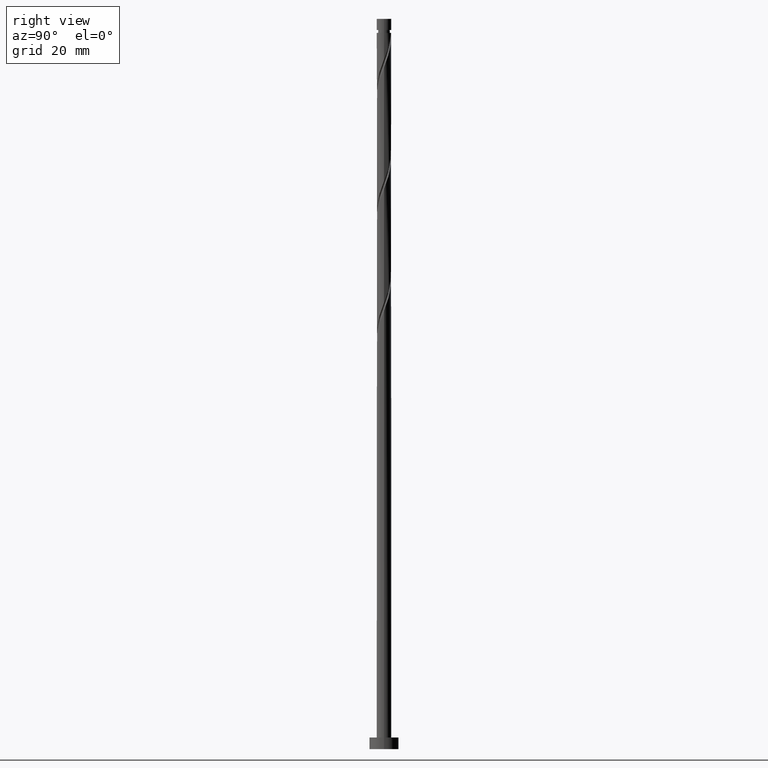
[diagram: clean part render]
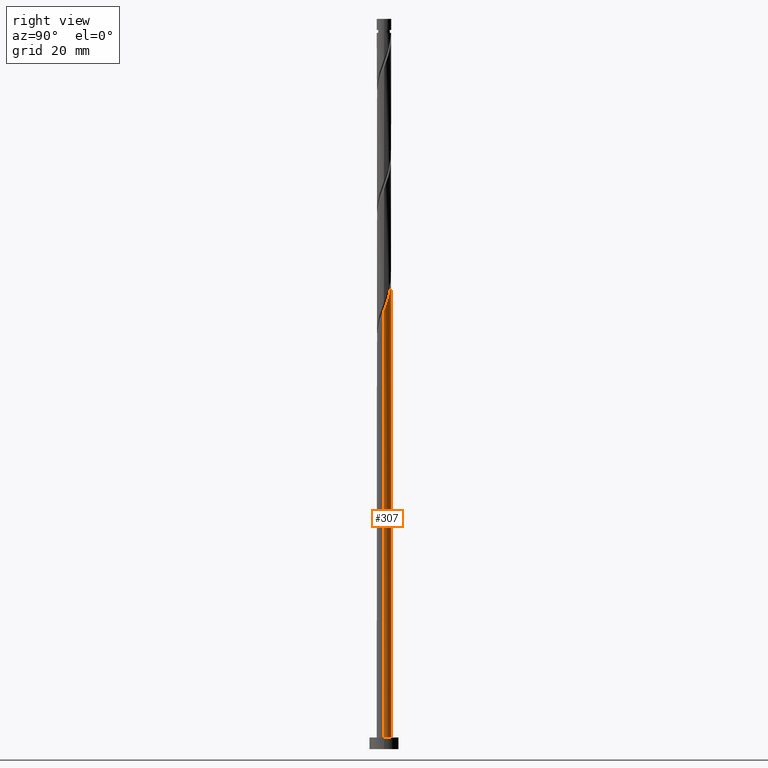
[diagram: same view with one face highlighted and labeled with its STEP entity id]
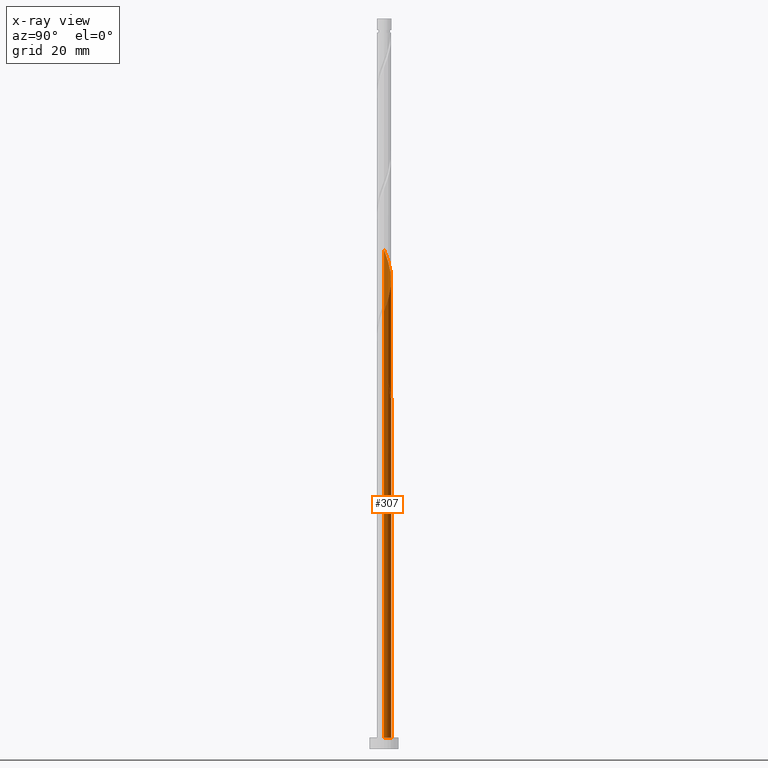
[diagram: x-ray of the same camera — body ghosted, the highlighted face saturated]
A machine part, right view. The second image highlights one B-rep face of the part: STEP entity #307.
The next image is the same camera in x-ray: the body ghosted, the highlighted face saturated — about 0% of this face is hidden behind the body in this view.
In plain terms, the highlighted cylindrical surface (edge-blend (fillet) strip) has radius 1.25 mm, axis along (-0, -0, -1).
Its self-contained STEP definition (entity closure, byte-faithful):
#3 = VECTOR ( 'NONE', #174, 1000.000000000000000 ) ;
#28 = VERTEX_POINT ( 'NONE', #939 ) ;
#37 = CARTESIAN_POINT ( 'NONE',  ( -1.250000000000000000, 0.000000000000000000, 125.0000000000000000 ) ) ;
#71 = CARTESIAN_POINT ( 'NONE',  ( 1.250000000000001776, 1.259420633789271218E-15, 75.06283800904398618 ) ) ;
#74 = CARTESIAN_POINT ( 'NONE',  ( -1.250000000000001776, 2.084041286865579920E-15, 85.47950467571061495 ) ) ;
#81 = ORIENTED_EDGE ( 'NONE', *, *, #883, .T. ) ;
#116 = CARTESIAN_POINT ( 'NONE',  ( -0.8448360826724217176, 0.9212773705104874145, 63.22764045051422244 ) ) ;
#132 = VECTOR ( 'NONE', #383, 1000.000000000000000 ) ;
#138 = EDGE_CURVE ( 'NONE', #285, #28, #197, .T. ) ;
#174 = DIRECTION ( 'NONE',  ( -0.000000000000000000, -0.000000000000000000, -1.000000000000000000 ) ) ;
#192 =( BOUNDED_CURVE ( )  B_SPLINE_CURVE ( 2, ( #1531, #198, #1161, #306, #562, #1077, #772, #821, #234, #705, #1199 ),
 .UNSPECIFIED., .F., .T. ) 
 B_SPLINE_CURVE_WITH_KNOTS ( ( 3, 2, 2, 2, 2, 3 ),
 ( 0.000000000000000000, 0.01249999999999995559, 0.02500000000000002220, 0.03749999999999997780, 0.05000000000000004441, 0.05453220231385556144 ),
 .UNSPECIFIED. ) 
 CURVE ( )  GEOMETRIC_REPRESENTATION_ITEM ( )  RATIONAL_B_SPLINE_CURVE ( ( 0.9090909090909247148, 0.8978984914501405568, 0.9090909090909247148, 0.8978984914501405568, 0.9090909090909247148, 0.8978984914501405568, 0.9090909090909247148, 0.8978984914501405568, 0.9090909090909247148, 0.9050328050005889136, 0.9039174447099469489 ) ) 
 REPRESENTATION_ITEM ( '' )  );
#197 = CIRCLE ( 'NONE', #415, 1.250000000000000000 ) ;
#198 = CARTESIAN_POINT ( 'NONE',  ( -0.4427677986742128424, 1.185602367910982613, 60.62347378384756524 ) ) ;
#228 = DIRECTION ( 'NONE',  ( -6.162975822039154730E-30, -4.163336342344339551E-14, -1.000000000000000000 ) ) ;
#234 = CARTESIAN_POINT ( 'NONE',  ( -1.241911239275444556, 0.1419734966862944425, 64.26930711718088673 ) ) ;
#237 = AXIS2_PLACEMENT_3D ( 'NONE', #1515, #518, #543 ) ;
#272 = VERTEX_POINT ( 'NONE', #703 ) ;
#283 = CARTESIAN_POINT ( 'NONE',  ( -0.6989200819604576287, 1.055086260630532236, 62.70680711718087963 ) ) ;
#285 = VERTEX_POINT ( 'NONE', #1568 ) ;
#306 = CARTESIAN_POINT ( 'NONE',  ( -0.7874684803904430375, 0.9907520833843873609, 61.66514045051423665 ) ) ;
#307 = ADVANCED_FACE ( 'NONE', ( #713 ), #957, .T. ) ;
#320 = CARTESIAN_POINT ( 'NONE',  ( -1.250000000000001776, -1.188953050708204892E-14, 64.64617134237732898 ) ) ;
#322 = CARTESIAN_POINT ( 'NONE',  ( -1.241911239275444556, 0.1419734966862944425, 85.10264045051420112 ) ) ;
#336 = CARTESIAN_POINT ( 'NONE',  ( -1.137255553546201226, 0.5187964976060726041, 84.06097378384755814 ) ) ;
#358 = CARTESIAN_POINT ( 'NONE',  ( -1.250000000000000000, 0.000000000000000000, 125.0000000000000000 ) ) ;
#362 = CARTESIAN_POINT ( 'NONE',  ( -0.4427677986742128424, 1.185602367910982613, 81.45680711718088673 ) ) ;
#373 = CARTESIAN_POINT ( 'NONE',  ( -1.250000000000001776, 0.1256297269073956557, 65.64147164991000238 ) ) ;
#383 = DIRECTION ( 'NONE',  ( -0.000000000000000000, -0.000000000000000000, -1.000000000000000000 ) ) ;
#395 = CARTESIAN_POINT ( 'NONE',  ( 0.2487468592766556297, 1.224999999999999867, 60.10264045051422954 ) ) ;
#415 = AXIS2_PLACEMENT_3D ( 'NONE', #1427, #228, #806 ) ;
#456 = CARTESIAN_POINT ( 'NONE',  ( -1.055086260630533568, 0.6989200819604585169, 83.54014045051421533 ) ) ;
#464 = CARTESIAN_POINT ( 'NONE',  ( 1.088177225647684931, 0.6151181395323275236, 76.76930711718085831 ) ) ;
#471 = VERTEX_POINT ( 'NONE', #874 ) ;
#477 = EDGE_CURVE ( 'NONE', #1047, #272, #1497, .T. ) ;
#505 = CARTESIAN_POINT ( 'NONE',  ( -1.185602367910981059, 0.4427677986742123983, 64.79014045051421533 ) ) ;
#518 = DIRECTION ( 'NONE',  ( 0.000000000000000000, 0.000000000000000000, 1.000000000000000000 ) ) ;
#543 = DIRECTION ( 'NONE',  ( 1.000000000000000000, 0.000000000000000000, 0.000000000000000000 ) ) ;
#552 = ORIENTED_EDGE ( 'NONE', *, *, #747, .F. ) ;
#562 = CARTESIAN_POINT ( 'NONE',  ( -0.9212773705104880806, 0.8448360826724227168, 62.18597378384755103 ) ) ;
#637 = LINE ( 'NONE', #37, #132 ) ;
#678 = CARTESIAN_POINT ( 'NONE',  ( -0.7874684803904430375, 0.9907520833843873609, 82.49847378384760077 ) ) ;
#690 = DIRECTION ( 'NONE',  ( -0.000000000000000000, -0.000000000000000000, -1.000000000000000000 ) ) ;
#703 = CARTESIAN_POINT ( 'NONE',  ( -1.250000000000001776, 2.084041286865579525E-15, 85.47950467571061495 ) ) ;
#705 = CARTESIAN_POINT ( 'NONE',  ( -1.250000000000002442, 0.07121717180803559255, 64.45666025317002834 ) ) ;
#712 = ORIENTED_EDGE ( 'NONE', *, *, #1213, .F. ) ;
#713 = FACE_OUTER_BOUND ( 'NONE', #937, .T. ) ;
#723 = DIRECTION ( 'NONE',  ( -0.000000000000000000, -0.000000000000000000, -1.000000000000000000 ) ) ;
#747 = EDGE_CURVE ( 'NONE', #272, #471, #1469, .T. ) ;
#750 = CARTESIAN_POINT ( 'NONE',  ( -0.5187964976060719380, 1.137255553546199893, 62.18597378384755814 ) ) ;
#761 = LINE ( 'NONE', #1260, #3 ) ;
#772 = CARTESIAN_POINT ( 'NONE',  ( -1.137255553546201226, 0.5187964976060726041, 63.22764045051420823 ) ) ;
#799 = CIRCLE ( 'NONE', #237, 1.250000000000000000 ) ;
#806 = DIRECTION ( 'NONE',  ( 0.000000000000000000, 1.000000000000000000, -4.440892098500626162E-14 ) ) ;
#810 = CARTESIAN_POINT ( 'NONE',  ( 0.000000000000000000, 0.000000000000000000, 125.0000000000000000 ) ) ;
#821 = CARTESIAN_POINT ( 'NONE',  ( -1.219424846461868661, 0.3386729132516869689, 63.74847378384757235 ) ) ;
#825 = CARTESIAN_POINT ( 'NONE',  ( 0.8448360826724228279, 0.9212773705104880806, 77.81097378384755814 ) ) ;
#874 = CARTESIAN_POINT ( 'NONE',  ( -1.250000000000000666, -8.755972025392122833E-15, 65.97577622531785835 ) ) ;
#883 = EDGE_CURVE ( 'NONE', #1047, #888, #761, .T. ) ;
#888 = VERTEX_POINT ( 'NONE', #1108 ) ;
#894 = ORIENTED_EDGE ( 'NONE', *, *, #952, .T. ) ;
#933 = CARTESIAN_POINT ( 'NONE',  ( 0.5187964976060729372, 1.137255553546200781, 78.85264045051421533 ) ) ;
#937 = EDGE_LOOP ( 'NONE', ( #1132, #81, #894, #712, #1015, #1314, #1343, #552 ) ) ;
#939 = CARTESIAN_POINT ( 'NONE',  ( 0.2487468592766556297, 1.224999999999999867, 60.10264045051422244 ) ) ;
#952 = EDGE_CURVE ( 'NONE', #888, #1196, #799, .T. ) ;
#954 = CARTESIAN_POINT ( 'NONE',  ( -0.2487468592766551023, 1.225000000000001199, 80.93597378384754393 ) ) ;
#957 = CYLINDRICAL_SURFACE ( 'NONE', #1519, 1.250000000000000000 ) ;
#986 = CARTESIAN_POINT ( 'NONE',  ( -1.088177225647683377, 0.6151181395323271905, 64.26930711718088673 ) ) ;
#1015 = ORIENTED_EDGE ( 'NONE', *, *, #1059, .F. ) ;
#1047 = VERTEX_POINT ( 'NONE', #71 ) ;
#1059 = EDGE_CURVE ( 'NONE', #285, #1536, #192, .T. ) ;
#1060 = CARTESIAN_POINT ( 'NONE',  ( 0.3386729132516872465, 1.219424846461868661, 79.37347378384758656 ) ) ;
#1071 = CARTESIAN_POINT ( 'NONE',  ( 1.185602367910983057, 0.4427677986742125649, 76.24847378384758656 ) ) ;
#1077 = CARTESIAN_POINT ( 'NONE',  ( -1.055086260630533568, 0.6989200819604585169, 62.70680711718089384 ) ) ;
#1088 = CARTESIAN_POINT ( 'NONE',  ( -0.3386729132516863583, 1.219424846461867107, 61.66514045051420823 ) ) ;
#1098 = CARTESIAN_POINT ( 'NONE',  ( -1.250000000000000000, 0.000000000000000000, 2.000000000000000000 ) ) ;
#1108 = CARTESIAN_POINT ( 'NONE',  ( 1.250000000000000000, 1.530808498934191571E-16, 2.000000000000000000 ) ) ;
#1115 = CARTESIAN_POINT ( 'NONE',  ( -1.224999999999999867, 0.2487468592766553521, 65.31097378384755814 ) ) ;
#1132 = ORIENTED_EDGE ( 'NONE', *, *, #477, .F. ) ;
#1161 = CARTESIAN_POINT ( 'NONE',  ( -0.6151181395323278567, 1.088177225647684709, 61.14430711718087963 ) ) ;
#1167 = CARTESIAN_POINT ( 'NONE',  ( -1.250000000000001332, 0.07121717180804135183, 85.28999358650332852 ) ) ;
#1185 = CARTESIAN_POINT ( 'NONE',  ( 1.225000000000001199, 0.2487468592766552411, 75.72764045051420112 ) ) ;
#1196 = VERTEX_POINT ( 'NONE', #1098 ) ;
#1199 = CARTESIAN_POINT ( 'NONE',  ( -1.250000000000001776, -1.188953050708204892E-14, 64.64617134237732898 ) ) ;
#1202 = CARTESIAN_POINT ( 'NONE',  ( 0.9907520833843873609, 0.7874684803904429264, 77.29014045051420112 ) ) ;
#1206 = CARTESIAN_POINT ( 'NONE',  ( -0.9907520833843855845, 0.7874684803904422603, 63.74847378384755814 ) ) ;
#1213 = EDGE_CURVE ( 'NONE', #1536, #1196, #637, .T. ) ;
#1219 = EDGE_CURVE ( 'NONE', #471, #28, #1388, .T. ) ;
#1250 = CARTESIAN_POINT ( 'NONE',  ( -0.1419734966862939984, 1.241911239275443446, 61.14430711718090095 ) ) ;
#1260 = CARTESIAN_POINT ( 'NONE',  ( 1.250000000000000000, 1.530808498934191571E-16, 125.0000000000000000 ) ) ;
#1288 = CARTESIAN_POINT ( 'NONE',  ( 1.250000000000001110, 0.1256297269074027056, 75.39714258445181372 ) ) ;
#1294 = CARTESIAN_POINT ( 'NONE',  ( -1.219424846461868661, 0.3386729132516869689, 84.58180711718088673 ) ) ;
#1311 = CARTESIAN_POINT ( 'NONE',  ( -0.05472591987909791039, 1.264397632089020673, 80.41514045051420112 ) ) ;
#1314 = ORIENTED_EDGE ( 'NONE', *, *, #138, .T. ) ;
#1320 = CARTESIAN_POINT ( 'NONE',  ( -0.6151181395323278567, 1.088177225647684709, 81.97764045051421533 ) ) ;
#1343 = ORIENTED_EDGE ( 'NONE', *, *, #1219, .F. ) ;
#1360 = CARTESIAN_POINT ( 'NONE',  ( -1.250000000000000888, -8.755972025392124411E-15, 65.97577622531785835 ) ) ;
#1388 =( BOUNDED_CURVE ( )  B_SPLINE_CURVE ( 2, ( #1360, #373, #1115, #505, #986, #1206, #116, #283, #750, #1088, #1250, #1474, #395 ),
 .UNSPECIFIED., .F., .T. ) 
 B_SPLINE_CURVE_WITH_KNOTS ( ( 3, 2, 2, 2, 2, 2, 3 ),
 ( 0.9295322023138548051, 0.9375000000000000000, 0.9499999999999999556, 0.9625000000000000222, 0.9749999999999999778, 0.9875000000000000444, 1.000000000000000000 ),
 .UNSPECIFIED. ) 
 CURVE ( )  GEOMETRIC_REPRESENTATION_ITEM ( )  RATIONAL_B_SPLINE_CURVE ( ( 0.9039174447099421750, 0.9019565955404709179, 0.9090909090909196077, 0.8978984914501357828, 0.9090909090909196077, 0.8978984914501357828, 0.9090909090909196077, 0.8978984914501357828, 0.9090909090909196077, 0.8978984914501357828, 0.9090909090909196077, 0.8978984914501357828, 0.9090909090909196077 ) ) 
 REPRESENTATION_ITEM ( '' )  );
#1410 = CARTESIAN_POINT ( 'NONE',  ( 0.1419734966862946923, 1.241911239275444556, 79.89430711718087252 ) ) ;
#1427 = CARTESIAN_POINT ( 'NONE',  ( 0.000000000000000000, 0.000000000000000000, 60.10264045051427928 ) ) ;
#1469 = LINE ( 'NONE', #358, #1529 ) ;
#1474 = CARTESIAN_POINT ( 'NONE',  ( 0.05472591987909832673, 1.264397632089019563, 60.62347378384755814 ) ) ;
#1497 =( BOUNDED_CURVE ( )  B_SPLINE_CURVE ( 2, ( #1548, #1288, #1185, #1071, #464, #1202, #825, #1555, #933, #1060, #1410, #1311, #954, #362, #1320, #678, #1539, #456, #336, #1294, #322, #1167, #74 ),
 .UNSPECIFIED., .F., .T. ) 
 B_SPLINE_CURVE_WITH_KNOTS ( ( 3, 2, 2, 2, 2, 2, 2, 2, 2, 2, 2, 3 ),
 ( 0.1795322023138552769, 0.1875000000000000000, 0.1999999999999999556, 0.2125000000000000222, 0.2249999999999999778, 0.2375000000000000444, 0.2500000000000000000, 0.2624999999999999556, 0.2750000000000000222, 0.2874999999999999778, 0.3000000000000000444, 0.3045322023138551937 ),
 .UNSPECIFIED. ) 
 CURVE ( )  GEOMETRIC_REPRESENTATION_ITEM ( )  RATIONAL_B_SPLINE_CURVE ( ( 0.9039174447099467269, 0.9019565955404762470, 0.9090909090909247148, 0.8978984914501405568, 0.9090909090909247148, 0.8978984914501405568, 0.9090909090909247148, 0.8978984914501405568, 0.9090909090909247148, 0.8978984914501405568, 0.9090909090909247148, 0.8978984914501405568, 0.9090909090909247148, 0.8978984914501405568, 0.9090909090909247148, 0.8978984914501405568, 0.9090909090909247148, 0.8978984914501405568, 0.9090909090909247148, 0.8978984914501405568, 0.9090909090909247148, 0.9050328050005891356, 0.9039174447099469489 ) ) 
 REPRESENTATION_ITEM ( '' )  );
#1515 = CARTESIAN_POINT ( 'NONE',  ( 0.000000000000000000, 0.000000000000000000, 2.000000000000000000 ) ) ;
#1519 = AXIS2_PLACEMENT_3D ( 'NONE', #810, #690, #1559 ) ;
#1529 = VECTOR ( 'NONE', #723, 1000.000000000000000 ) ;
#1531 = CARTESIAN_POINT ( 'NONE',  ( -0.2487468592766551023, 1.225000000000001199, 60.10264045051422244 ) ) ;
#1536 = VERTEX_POINT ( 'NONE', #320 ) ;
#1539 = CARTESIAN_POINT ( 'NONE',  ( -0.9212773705104880806, 0.8448360826724227168, 83.01930711718088673 ) ) ;
#1548 = CARTESIAN_POINT ( 'NONE',  ( 1.250000000000001776, 1.259420633789271218E-15, 75.06283800904398618 ) ) ;
#1555 = CARTESIAN_POINT ( 'NONE',  ( 0.6989200819604589610, 1.055086260630533568, 78.33180711718090095 ) ) ;
#1559 = DIRECTION ( 'NONE',  ( -1.000000000000000000, 0.000000000000000000, 0.000000000000000000 ) ) ;
#1568 = CARTESIAN_POINT ( 'NONE',  ( -0.2487468592766551301, 1.225000000000001421, 60.10264045051422244 ) ) ;